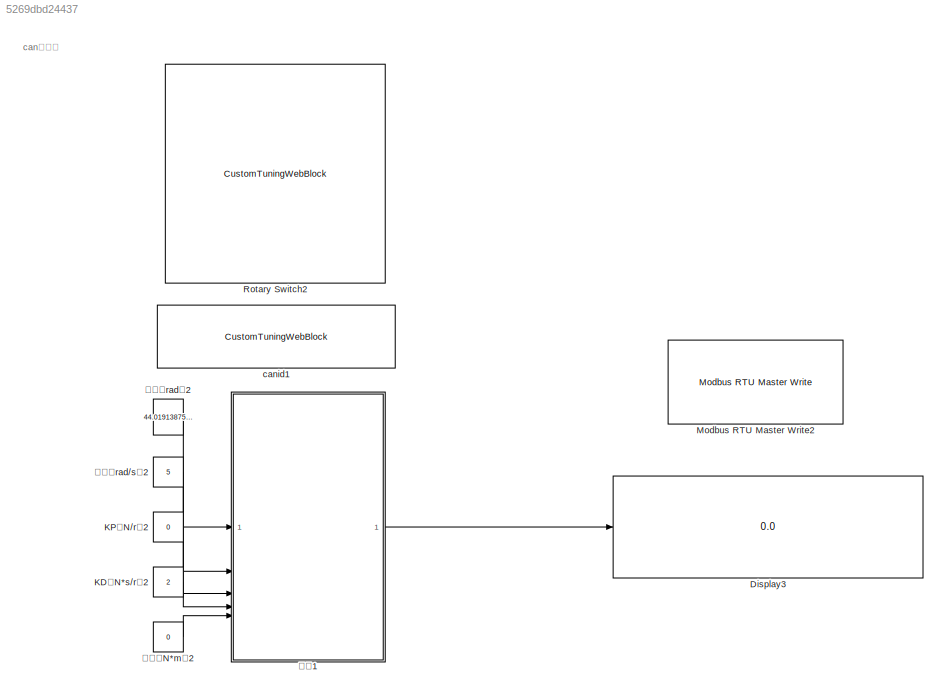
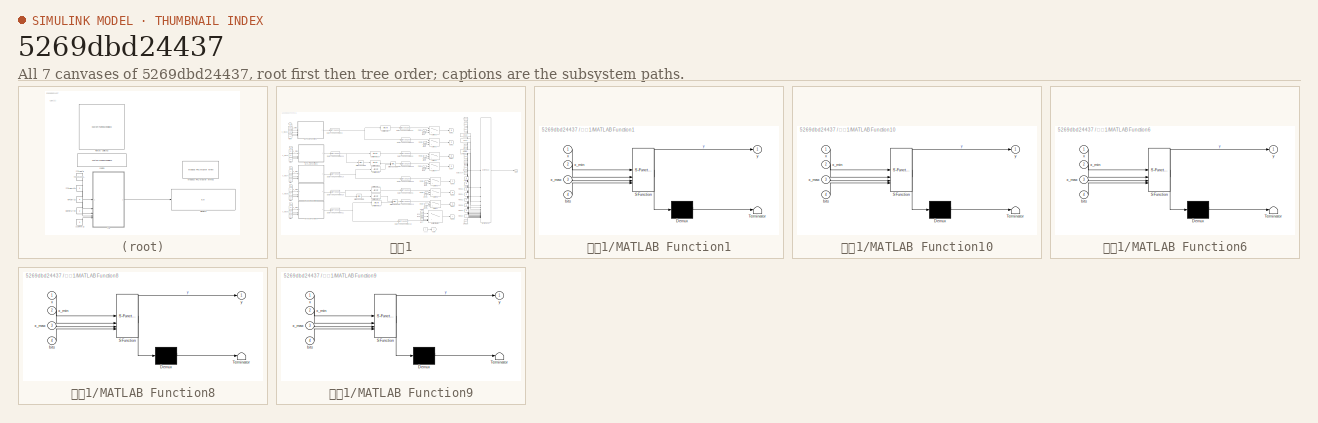
[diagram: thumbnail index - all 7 canvases of the model, root first then tree order]
MODEL slx_5269dbd24437
KIND model
CONFIG AbsTol = auto
CONFIG EnableMultiTasking = off
CONFIG FixedStep = auto
CONFIG MaxStep = auto
CONFIG MinStep = auto
CONFIG RelTol = 1e-3
CONFIG SampleTimeConstraint = Unconstrained
CONFIG SolverName = VariableStepAuto
CONFIG StartTime = 0.0
CONFIG StopTime = inf
BLOCK [Display] Display3
  Decimation = 1
  Format = hex (Stored Integer)
BLOCK [Constant] KD（N*s//r）2
  OutDataTypeStr = single
  Value = 2
BLOCK [Constant] KP（N//r）2
  OutDataTypeStr = single
  Value = 0
BLOCK [Reference] Modbus RTU Master Write2  REF=RTBoxbasiclib/Modbus RTU Master Write
  Commented = on
  SourceBlock = RTBoxbasiclib/Modbus RTU Master Write
  SourceProductName = RT Box Simulink support
  SourceType = codertarget.rtbox.blocks.Modbus_RTU_Master_Write
BLOCK [CustomTuningWebBlock] Rotary Switch2
  Configuration = {"type":"RotarySwitch","settings":{"BindingType":"param","backgroundColor":[0,0,255,"1"],"backgroundOffset":1,"fixedAspectRatio":"on","image":{"size":[150,150],"src":"data:image/svg+xml;base64,PD94bWwgdmVyc2lvbj0iMS4wIiBlbmNvZGluZz0iVVRGLTgiIHN0YW5kYWxvbmU9Im5vIj8+CjwhLS0gR2VuZXJhdG9yOiBBZG9iZSBJbGx1c3RyYXRvciAxOS4yLjEsIFNWRyBFeHBvcnQgUGx1Zy1JbiAuIFNWRyBWZXJzaW9uOiA2LjAwIEJ1aWxkIDApICAtLT4KCjxzdmc...<+18092ch>
  ShowInitialText = on
BLOCK [CustomTuningWebBlock] canid1
  Configuration = {"type":"LinearGauge","settings":{"BindingType":"param","aspectRatio":3.7777777777777777,"backgroundColor":[0,0,0,"1"],"backgroundOffset":0,"backgroundOpacity":1,"fixedAspectRatio":"on","foregroundColor":[252,252,196],"orientation":"horizontal","showBackgroundColor":false,"value":0},"components":[{"name":"LinearScaleComponent","settings":{"bounds":{"max":6,"min":1,"tickInterval":1},"internalTickHe...<+5462ch>
  LabelPosition = Hide
  ShowInitialText = on
BLOCK [Constant] 位置（rad）2
  OutDataTypeStr = single
  Value = 44.01913875598086
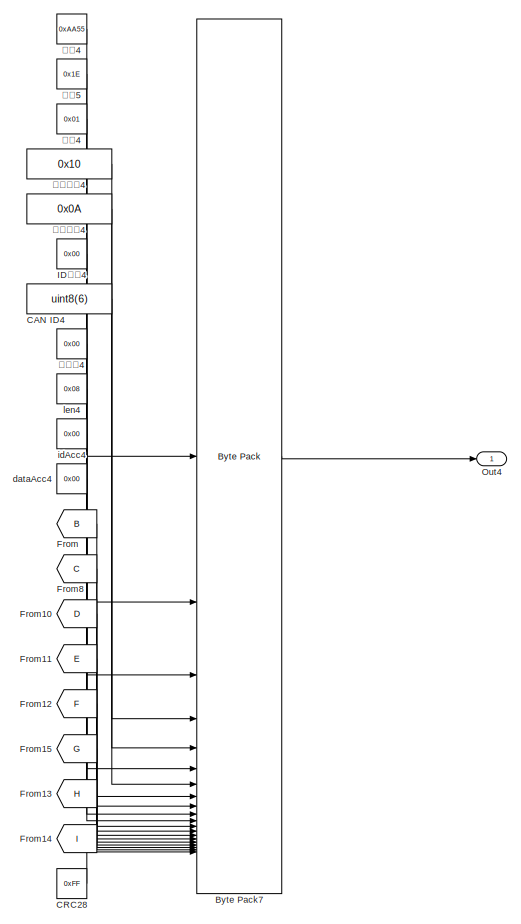
[diagram: 组包1 - part 1/3, right side, full height]
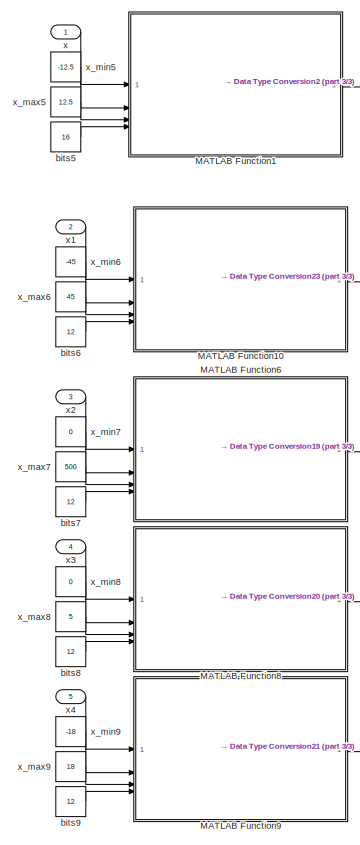
[diagram: 组包1 - part 2/3, left side, full height]
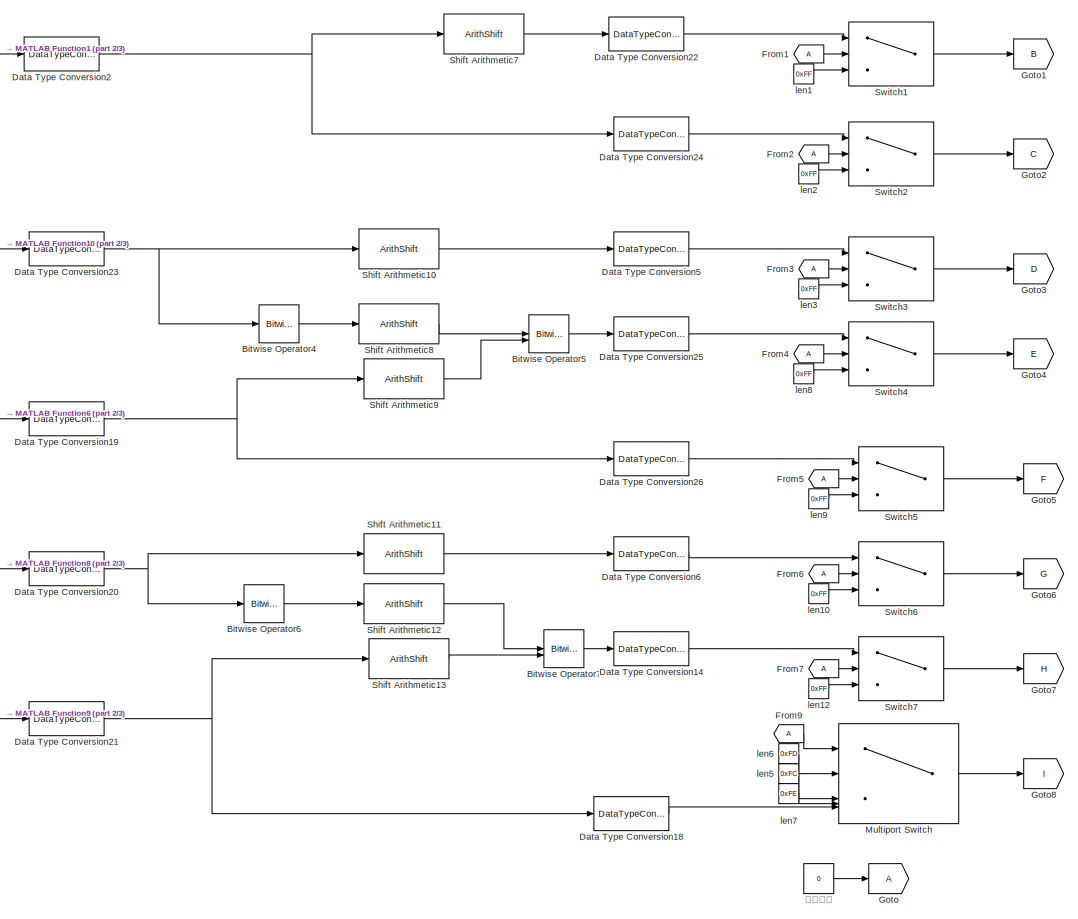
[diagram: 组包1 - part 3/3, center side, full height]
BLOCK [SubSystem] 组包1
BLOCK [Reference] 组包1/Bitwise Operator4  REF=simulink/Logic and Bit
Operations/Bitwise
Operator
  SourceBlock = simulink/Logic and Bit\nOperations/Bitwise\nOperator
  SourceType = Bitwise Operator
BLOCK [Reference] 组包1/Bitwise Operator5  REF=simulink/Logic and Bit
Operations/Bitwise
Operator
  SourceBlock = simulink/Logic and Bit\nOperations/Bitwise\nOperator
  SourceType = Bitwise Operator
BLOCK [Reference] 组包1/Bitwise Operator6  REF=simulink/Logic and Bit
Operations/Bitwise
Operator
  SourceBlock = simulink/Logic and Bit\nOperations/Bitwise\nOperator
  SourceType = Bitwise Operator
BLOCK [Reference] 组包1/Bitwise Operator7  REF=simulink/Logic and Bit
Operations/Bitwise
Operator
  SourceBlock = simulink/Logic and Bit\nOperations/Bitwise\nOperator
  SourceType = Bitwise Operator
BLOCK [Reference] 组包1/Byte Pack7  REF=etargetslib/Byte Pack
  SourceBlock = etargetslib/Byte Pack
  SourceType = Byte pack
BLOCK [Constant] 组包1/CAN ID4
  OutDataTypeStr = uint32
  Value = uint8(6)
BLOCK [Constant] 组包1/CRC28
  OutDataTypeStr = uint8
  Value = 0xFF
BLOCK [DataTypeConversion] 组包1/Data Type Conversion14
  OutDataTypeStr = uint8
  RndMeth = Floor
  SaturateOnIntegerOverflow = off
BLOCK [DataTypeConversion] 组包1/Data Type Conversion18
  OutDataTypeStr = uint8
  RndMeth = Floor
  SaturateOnIntegerOverflow = off
BLOCK [DataTypeConversion] 组包1/Data Type Conversion19
  OutDataTypeStr = uint16
  RndMeth = Floor
  SaturateOnIntegerOverflow = off
BLOCK [DataTypeConversion] 组包1/Data Type Conversion2
  OutDataTypeStr = uint16
  RndMeth = Floor
  SaturateOnIntegerOverflow = off
BLOCK [DataTypeConversion] 组包1/Data Type Conversion20
  OutDataTypeStr = uint16
  RndMeth = Floor
  SaturateOnIntegerOverflow = off
BLOCK [DataTypeConversion] 组包1/Data Type Conversion21
  OutDataTypeStr = uint16
  RndMeth = Floor
  SaturateOnIntegerOverflow = off
BLOCK [DataTypeConversion] 组包1/Data Type Conversion22
  OutDataTypeStr = uint8
  RndMeth = Floor
  SaturateOnIntegerOverflow = off
BLOCK [DataTypeConversion] 组包1/Data Type Conversion23
  OutDataTypeStr = uint16
  RndMeth = Floor
  SaturateOnIntegerOverflow = off
BLOCK [DataTypeConversion] 组包1/Data Type Conversion24
  OutDataTypeStr = uint8
  RndMeth = Floor
  SaturateOnIntegerOverflow = off
BLOCK [DataTypeConversion] 组包1/Data Type Conversion25
  OutDataTypeStr = uint8
  RndMeth = Floor
  SaturateOnIntegerOverflow = off
BLOCK [DataTypeConversion] 组包1/Data Type Conversion26
  OutDataTypeStr = uint8
  RndMeth = Floor
  SaturateOnIntegerOverflow = off
BLOCK [DataTypeConversion] 组包1/Data Type Conversion5
  NameLocation = left
  OutDataTypeStr = uint8
  RndMeth = Floor
  SaturateOnIntegerOverflow = off
BLOCK [DataTypeConversion] 组包1/Data Type Conversion6
  OutDataTypeStr = uint8
  RndMeth = Floor
  SaturateOnIntegerOverflow = off
BLOCK [From] 组包1/From
  GotoTag = B
BLOCK [From] 组包1/From1
BLOCK [From] 组包1/From10
  GotoTag = D
BLOCK [From] 组包1/From11
  GotoTag = E
BLOCK [From] 组包1/From12
  GotoTag = F
BLOCK [From] 组包1/From13
  GotoTag = H
BLOCK [From] 组包1/From14
  GotoTag = I
BLOCK [From] 组包1/From15
  GotoTag = G
BLOCK [From] 组包1/From2
BLOCK [From] 组包1/From3
BLOCK [From] 组包1/From4
BLOCK [From] 组包1/From5
BLOCK [From] 组包1/From6
BLOCK [From] 组包1/From7
BLOCK [From] 组包1/From8
  GotoTag = C
BLOCK [From] 组包1/From9
BLOCK [Goto] 组包1/Goto
BLOCK [Goto] 组包1/Goto1
  GotoTag = B
BLOCK [Goto] 组包1/Goto2
  GotoTag = C
BLOCK [Goto] 组包1/Goto3
  GotoTag = D
BLOCK [Goto] 组包1/Goto4
  GotoTag = E
BLOCK [Goto] 组包1/Goto5
  GotoTag = F
BLOCK [Goto] 组包1/Goto6
  GotoTag = G
BLOCK [Goto] 组包1/Goto7
  GotoTag = H
BLOCK [Goto] 组包1/Goto8
  GotoTag = I
BLOCK [Constant] 组包1/ID类型4
  OutDataTypeStr = uint8
  Value = 0x00
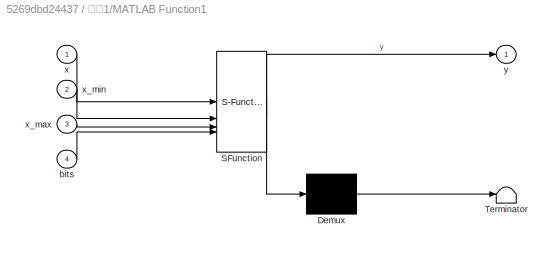
BLOCK [SubSystem] 组包1/MATLAB Function1
  ErrorFcn = Stateflow.Translate.translate
  LibrarySourceBlock = simulink/User-Defined\nFunctions/MATLAB Function
  PermitHierarchicalResolution = ExplicitOnly
  SFBlockType = MATLAB Function
  TreatAsAtomicUnit = on
BLOCK [Demux] 组包1/MATLAB Function1/ Demux 
  Outputs = 1
BLOCK [S-Function] 组包1/MATLAB Function1/ SFunction 
  EnableBusSupport = on
  FunctionName = sf_sfun
  PortCounts = [4 2]
  SFcnIsStateOwnerBlock = off
  SFunctionDeploymentMode = off
  Tag = Stateflow S-Function 3
BLOCK [Terminator] 组包1/MATLAB Function1/ Terminator 
BLOCK [Inport] 组包1/MATLAB Function1/bits
  Port = 4
BLOCK [Inport] 组包1/MATLAB Function1/x
BLOCK [Inport] 组包1/MATLAB Function1/x_max
  Port = 3
BLOCK [Inport] 组包1/MATLAB Function1/x_min
  Port = 2
BLOCK [Outport] 组包1/MATLAB Function1/y
BLOCK [SubSystem] 组包1/MATLAB Function10
  ErrorFcn = Stateflow.Translate.translate
  LibrarySourceBlock = simulink/User-Defined\nFunctions/MATLAB Function
  PermitHierarchicalResolution = ExplicitOnly
  SFBlockType = MATLAB Function
  TreatAsAtomicUnit = on
BLOCK [Demux] 组包1/MATLAB Function10/ Demux 
  Outputs = 1
BLOCK [S-Function] 组包1/MATLAB Function10/ SFunction 
  EnableBusSupport = on
  FunctionName = sf_sfun
  PortCounts = [4 2]
  SFcnIsStateOwnerBlock = off
  SFunctionDeploymentMode = off
  Tag = Stateflow S-Function 4
BLOCK [Terminator] 组包1/MATLAB Function10/ Terminator 
BLOCK [Inport] 组包1/MATLAB Function10/bits
  Port = 4
BLOCK [Inport] 组包1/MATLAB Function10/x
BLOCK [Inport] 组包1/MATLAB Function10/x_max
  Port = 3
BLOCK [Inport] 组包1/MATLAB Function10/x_min
  Port = 2
BLOCK [Outport] 组包1/MATLAB Function10/y
BLOCK [SubSystem] 组包1/MATLAB Function6
  ErrorFcn = Stateflow.Translate.translate
  LibrarySourceBlock = simulink/User-Defined\nFunctions/MATLAB Function
  PermitHierarchicalResolution = ExplicitOnly
  SFBlockType = MATLAB Function
  TreatAsAtomicUnit = on
BLOCK [Demux] 组包1/MATLAB Function6/ Demux 
  Outputs = 1
BLOCK [S-Function] 组包1/MATLAB Function6/ SFunction 
  EnableBusSupport = on
  FunctionName = sf_sfun
  PortCounts = [4 2]
  SFcnIsStateOwnerBlock = off
  SFunctionDeploymentMode = off
  Tag = Stateflow S-Function 5
BLOCK [Terminator] 组包1/MATLAB Function6/ Terminator 
BLOCK [Inport] 组包1/MATLAB Function6/bits
  Port = 4
BLOCK [Inport] 组包1/MATLAB Function6/x
BLOCK [Inport] 组包1/MATLAB Function6/x_max
  Port = 3
BLOCK [Inport] 组包1/MATLAB Function6/x_min
  Port = 2
BLOCK [Outport] 组包1/MATLAB Function6/y
BLOCK [SubSystem] 组包1/MATLAB Function8
  ErrorFcn = Stateflow.Translate.translate
  LibrarySourceBlock = simulink/User-Defined\nFunctions/MATLAB Function
  PermitHierarchicalResolution = ExplicitOnly
  SFBlockType = MATLAB Function
  TreatAsAtomicUnit = on
BLOCK [Demux] 组包1/MATLAB Function8/ Demux 
  Outputs = 1
BLOCK [S-Function] 组包1/MATLAB Function8/ SFunction 
  EnableBusSupport = on
  FunctionName = sf_sfun
  PortCounts = [4 2]
  SFcnIsStateOwnerBlock = off
  SFunctionDeploymentMode = off
  Tag = Stateflow S-Function 6
BLOCK [Terminator] 组包1/MATLAB Function8/ Terminator 
BLOCK [Inport] 组包1/MATLAB Function8/bits
  Port = 4
BLOCK [Inport] 组包1/MATLAB Function8/x
BLOCK [Inport] 组包1/MATLAB Function8/x_max
  Port = 3
BLOCK [Inport] 组包1/MATLAB Function8/x_min
  Port = 2
BLOCK [Outport] 组包1/MATLAB Function8/y
BLOCK [SubSystem] 组包1/MATLAB Function9
  ErrorFcn = Stateflow.Translate.translate
  LibrarySourceBlock = simulink/User-Defined\nFunctions/MATLAB Function
  PermitHierarchicalResolution = ExplicitOnly
  SFBlockType = MATLAB Function
  TreatAsAtomicUnit = on
BLOCK [Demux] 组包1/MATLAB Function9/ Demux 
  Outputs = 1
BLOCK [S-Function] 组包1/MATLAB Function9/ SFunction 
  EnableBusSupport = on
  FunctionName = sf_sfun
  PortCounts = [4 2]
  SFcnIsStateOwnerBlock = off
  SFunctionDeploymentMode = off
  Tag = Stateflow S-Function 8
BLOCK [Terminator] 组包1/MATLAB Function9/ Terminator 
BLOCK [Inport] 组包1/MATLAB Function9/bits
  Port = 4
BLOCK [Inport] 组包1/MATLAB Function9/x
BLOCK [Inport] 组包1/MATLAB Function9/x_max
  Port = 3
BLOCK [Inport] 组包1/MATLAB Function9/x_min
  Port = 2
BLOCK [Outport] 组包1/MATLAB Function9/y
BLOCK [MultiPortSwitch] 组包1/Multiport Switch
  DataPortOrder = Zero-based contiguous
  InputSameDT = off
  Inputs = 4
  SaturateOnIntegerOverflow = off
  zeroidx = on
BLOCK [Outport] 组包1/Out4
BLOCK [ArithShift] 组包1/Shift Arithmetic10
  BitShiftDirection = Right
  BitShiftNumber = 4
  InputPortMap = u0
BLOCK [ArithShift] 组包1/Shift Arithmetic11
  BitShiftDirection = Right
  BitShiftNumber = 4
  InputPortMap = u0
BLOCK [ArithShift] 组包1/Shift Arithmetic12
  BitShiftDirection = Left
  BitShiftNumber = 4
  InputPortMap = u0
BLOCK [ArithShift] 组包1/Shift Arithmetic13
  BitShiftDirection = Right
  BitShiftNumber = 8
  InputPortMap = u0
BLOCK [ArithShift] 组包1/Shift Arithmetic7
  BitShiftDirection = Right
  BitShiftNumber = 8
  InputPortMap = u0
BLOCK [ArithShift] 组包1/Shift Arithmetic8
  BitShiftDirection = Left
  BitShiftNumber = 4
  InputPortMap = u0
BLOCK [ArithShift] 组包1/Shift Arithmetic9
  BitShiftDirection = Right
  BitShiftNumber = 8
  InputPortMap = u0
BLOCK [Switch] 组包1/Switch1
  InputSameDT = off
  SaturateOnIntegerOverflow = off
  Threshold = 3
BLOCK [Switch] 组包1/Switch2
  InputSameDT = off
  SaturateOnIntegerOverflow = off
  Threshold = 3
BLOCK [Switch] 组包1/Switch3
  InputSameDT = off
  SaturateOnIntegerOverflow = off
  Threshold = 3
BLOCK [Switch] 组包1/Switch4
  InputSameDT = off
  SaturateOnIntegerOverflow = off
  Threshold = 3
BLOCK [Switch] 组包1/Switch5
  InputSameDT = off
  SaturateOnIntegerOverflow = off
  Threshold = 3
BLOCK [Switch] 组包1/Switch6
  InputSameDT = off
  SaturateOnIntegerOverflow = off
  Threshold = 3
BLOCK [Switch] 组包1/Switch7
  InputSameDT = off
  SaturateOnIntegerOverflow = off
  Threshold = 3
BLOCK [Constant] 组包1/bits5
  OutDataTypeStr = uint16
  Value = 16
BLOCK [Constant] 组包1/bits6
  OutDataTypeStr = uint16
  Value = 12
BLOCK [Constant] 组包1/bits7
  OutDataTypeStr = uint16
  Value = 12
BLOCK [Constant] 组包1/bits8
  OutDataTypeStr = uint16
  Value = 12
BLOCK [Constant] 组包1/bits9
  OutDataTypeStr = uint16
  Value = 12
BLOCK [Constant] 组包1/dataAcc4
  OutDataTypeStr = uint8
  Value = 0x00
BLOCK [Constant] 组包1/idAcc4
  OutDataTypeStr = uint8
  Value = 0x00
BLOCK [Constant] 组包1/len1
  OutDataTypeStr = uint8
  Value = 0xFF
BLOCK [Constant] 组包1/len10
  OutDataTypeStr = uint8
  Value = 0xFF
BLOCK [Constant] 组包1/len12
  OutDataTypeStr = uint8
  Value = 0xFF
BLOCK [Constant] 组包1/len2
  OutDataTypeStr = uint8
  Value = 0xFF
BLOCK [Constant] 组包1/len3
  OutDataTypeStr = uint8
  Value = 0xFF
BLOCK [Constant] 组包1/len4
  OutDataTypeStr = uint8
  Value = 0x08
BLOCK [Constant] 组包1/len5
  OutDataTypeStr = uint8
  Value = 0xFC
BLOCK [Constant] 组包1/len6
  OutDataTypeStr = uint8
  Value = 0xFD
BLOCK [Constant] 组包1/len7
  OutDataTypeStr = uint8
  Value = 0xFE
BLOCK [Constant] 组包1/len8
  OutDataTypeStr = uint8
  Value = 0xFF
BLOCK [Constant] 组包1/len9
  OutDataTypeStr = uint8
  Value = 0xFF
BLOCK [Inport] 组包1/x
BLOCK [Inport] 组包1/x1
  Port = 2
BLOCK [Inport] 组包1/x2
  Port = 3
BLOCK [Inport] 组包1/x3
  Port = 4
BLOCK [Inport] 组包1/x4
  Port = 5
BLOCK [Constant] 组包1/x_max5
  OutDataTypeStr = single
  Value = 12.5
BLOCK [Constant] 组包1/x_max6
  OutDataTypeStr = single
  Value = 45
BLOCK [Constant] 组包1/x_max7
  OutDataTypeStr = single
  Value = 500
BLOCK [Constant] 组包1/x_max8
  OutDataTypeStr = single
  Value = 5
BLOCK [Constant] 组包1/x_max9
  OutDataTypeStr = single
  Value = 18
BLOCK [Constant] 组包1/x_min5
  OutDataTypeStr = single
  Value = -12.5
BLOCK [Constant] 组包1/x_min6
  OutDataTypeStr = single
  Value = -45
BLOCK [Constant] 组包1/x_min7
  OutDataTypeStr = single
  Value = 0
BLOCK [Constant] 组包1/x_min8
  OutDataTypeStr = single
  Value = 0
BLOCK [Constant] 组包1/x_min9
  OutDataTypeStr = single
  Value = -18
BLOCK [Constant] 组包1/发送次数4
  OutDataTypeStr = uint32
  Value = 0x10
BLOCK [Constant] 组包1/命令4
  OutDataTypeStr = uint8
  Value = 0x01
BLOCK [Constant] 组包1/帧头4
  OutDataTypeStr = uint16
  Value = 0xAA55
BLOCK [Constant] 组包1/帧类型4
  OutDataTypeStr = uint8
  Value = 0x00
BLOCK [Constant] 组包1/帧长5
  OutDataTypeStr = uint8
  Value = 0x1E
BLOCK [Constant] 组包1/控制模式
  OutDataTypeStr = int8
  Value = 0
BLOCK [Constant] 组包1/时间间隔4
  OutDataTypeStr = uint32
  Value = 0x0A
BLOCK [Constant] 转矩（N*m）2
  OutDataTypeStr = single
  Value = 0
BLOCK [Constant] 速度（rad//s）2
  OutDataTypeStr = single
  Value = 5
ANNOTATION (root): can发送端
LINE KD（N*s//r）2:1 -> 组包1:4
LINE KP（N//r）2:1 -> 组包1:3
LINE 位置（rad）2:1 -> 组包1:1
LINE 组包1/Bitwise Operator4:1 -> 组包1/Shift Arithmetic8:1
LINE 组包1/Bitwise Operator5:1 -> 组包1/Data Type Conversion25:1
LINE 组包1/Bitwise Operator6:1 -> 组包1/Shift Arithmetic12:1
LINE 组包1/Bitwise Operator7:1 -> 组包1/Data Type Conversion14:1
LINE 组包1/Byte Pack7:1 -> 组包1/Out4:1
LINE 组包1/CAN ID4:1 -> 组包1/Byte Pack7:7
LINE 组包1/CRC28:1 -> 组包1/Byte Pack7:20
LINE 组包1/Data Type Conversion14:1 -> 组包1/Switch7:1
LINE 组包1/Data Type Conversion18:1 -> 组包1/Multiport Switch:5
NET 组包1/Data Type Conversion19:1 -> 组包1/Data Type Conversion26:1, 组包1/Shift Arithmetic9:1
NET 组包1/Data Type Conversion20:1 -> 组包1/Bitwise Operator6:1, 组包1/Shift Arithmetic11:1
NET 组包1/Data Type Conversion21:1 -> 组包1/Data Type Conversion18:1, 组包1/Shift Arithmetic13:1
LINE 组包1/Data Type Conversion22:1 -> 组包1/Switch1:1
NET 组包1/Data Type Conversion23:1 -> 组包1/Bitwise Operator4:1, 组包1/Shift Arithmetic10:1
LINE 组包1/Data Type Conversion24:1 -> 组包1/Switch2:1
LINE 组包1/Data Type Conversion25:1 -> 组包1/Switch4:1
LINE 组包1/Data Type Conversion26:1 -> 组包1/Switch5:1
NET 组包1/Data Type Conversion2:1 -> 组包1/Data Type Conversion24:1, 组包1/Shift Arithmetic7:1
LINE 组包1/Data Type Conversion5:1 -> 组包1/Switch3:1
LINE 组包1/Data Type Conversion6:1 -> 组包1/Switch6:1
LINE 组包1/From10:1 -> 组包1/Byte Pack7:14
LINE 组包1/From11:1 -> 组包1/Byte Pack7:15
LINE 组包1/From12:1 -> 组包1/Byte Pack7:16
LINE 组包1/From13:1 -> 组包1/Byte Pack7:18
LINE 组包1/From14:1 -> 组包1/Byte Pack7:19
LINE 组包1/From15:1 -> 组包1/Byte Pack7:17
LINE 组包1/From1:1 -> 组包1/Switch1:2
LINE 组包1/From2:1 -> 组包1/Switch2:2
LINE 组包1/From3:1 -> 组包1/Switch3:2
LINE 组包1/From4:1 -> 组包1/Switch4:2
LINE 组包1/From5:1 -> 组包1/Switch5:2
LINE 组包1/From6:1 -> 组包1/Switch6:2
LINE 组包1/From7:1 -> 组包1/Switch7:2
LINE 组包1/From8:1 -> 组包1/Byte Pack7:13
LINE 组包1/From9:1 -> 组包1/Multiport Switch:1
LINE 组包1/From:1 -> 组包1/Byte Pack7:12
LINE 组包1/ID类型4:1 -> 组包1/Byte Pack7:6
LINE 组包1/MATLAB Function10:1 -> 组包1/Data Type Conversion23:1
LINE 组包1/MATLAB Function1:1 -> 组包1/Data Type Conversion2:1
LINE 组包1/MATLAB Function6:1 -> 组包1/Data Type Conversion19:1
LINE 组包1/MATLAB Function8:1 -> 组包1/Data Type Conversion20:1
LINE 组包1/MATLAB Function9:1 -> 组包1/Data Type Conversion21:1
LINE 组包1/Multiport Switch:1 -> 组包1/Goto8:1
LINE 组包1/Shift Arithmetic10:1 -> 组包1/Data Type Conversion5:1
LINE 组包1/Shift Arithmetic11:1 -> 组包1/Data Type Conversion6:1
LINE 组包1/Shift Arithmetic12:1 -> 组包1/Bitwise Operator7:1
LINE 组包1/Shift Arithmetic13:1 -> 组包1/Bitwise Operator7:2
LINE 组包1/Shift Arithmetic7:1 -> 组包1/Data Type Conversion22:1
LINE 组包1/Shift Arithmetic8:1 -> 组包1/Bitwise Operator5:1
LINE 组包1/Shift Arithmetic9:1 -> 组包1/Bitwise Operator5:2
LINE 组包1/Switch1:1 -> 组包1/Goto1:1
LINE 组包1/Switch2:1 -> 组包1/Goto2:1
LINE 组包1/Switch3:1 -> 组包1/Goto3:1
LINE 组包1/Switch4:1 -> 组包1/Goto4:1
LINE 组包1/Switch5:1 -> 组包1/Goto5:1
LINE 组包1/Switch6:1 -> 组包1/Goto6:1
LINE 组包1/Switch7:1 -> 组包1/Goto7:1
LINE 组包1/bits5:1 -> 组包1/MATLAB Function1:4
LINE 组包1/bits6:1 -> 组包1/MATLAB Function10:4
LINE 组包1/bits7:1 -> 组包1/MATLAB Function6:4
LINE 组包1/bits8:1 -> 组包1/MATLAB Function8:4
LINE 组包1/bits9:1 -> 组包1/MATLAB Function9:4
LINE 组包1/dataAcc4:1 -> 组包1/Byte Pack7:11
LINE 组包1/idAcc4:1 -> 组包1/Byte Pack7:10
LINE 组包1/len10:1 -> 组包1/Switch6:3
LINE 组包1/len12:1 -> 组包1/Switch7:3
LINE 组包1/len1:1 -> 组包1/Switch1:3
LINE 组包1/len2:1 -> 组包1/Switch2:3
LINE 组包1/len3:1 -> 组包1/Switch3:3
LINE 组包1/len4:1 -> 组包1/Byte Pack7:9
LINE 组包1/len5:1 -> 组包1/Multiport Switch:3
LINE 组包1/len6:1 -> 组包1/Multiport Switch:2
LINE 组包1/len7:1 -> 组包1/Multiport Switch:4
LINE 组包1/len8:1 -> 组包1/Switch4:3
LINE 组包1/len9:1 -> 组包1/Switch5:3
LINE 组包1/x1:1 -> 组包1/MATLAB Function10:1
LINE 组包1/x2:1 -> 组包1/MATLAB Function6:1
LINE 组包1/x3:1 -> 组包1/MATLAB Function8:1
LINE 组包1/x4:1 -> 组包1/MATLAB Function9:1
LINE 组包1/x:1 -> 组包1/MATLAB Function1:1
LINE 组包1/x_max5:1 -> 组包1/MATLAB Function1:3
LINE 组包1/x_max6:1 -> 组包1/MATLAB Function10:3
LINE 组包1/x_max7:1 -> 组包1/MATLAB Function6:3
LINE 组包1/x_max8:1 -> 组包1/MATLAB Function8:3
LINE 组包1/x_max9:1 -> 组包1/MATLAB Function9:3
LINE 组包1/x_min5:1 -> 组包1/MATLAB Function1:2
LINE 组包1/x_min6:1 -> 组包1/MATLAB Function10:2
LINE 组包1/x_min7:1 -> 组包1/MATLAB Function6:2
LINE 组包1/x_min8:1 -> 组包1/MATLAB Function8:2
LINE 组包1/x_min9:1 -> 组包1/MATLAB Function9:2
LINE 组包1/发送次数4:1 -> 组包1/Byte Pack7:4
LINE 组包1/命令4:1 -> 组包1/Byte Pack7:3
LINE 组包1/帧头4:1 -> 组包1/Byte Pack7:1
LINE 组包1/帧类型4:1 -> 组包1/Byte Pack7:8
LINE 组包1/帧长5:1 -> 组包1/Byte Pack7:2
LINE 组包1/控制模式:1 -> 组包1/Goto:1
LINE 组包1/时间间隔4:1 -> 组包1/Byte Pack7:5
LINE 组包1:1 -> Display3:1
LINE 转矩（N*m）2:1 -> 组包1:5
LINE 速度（rad//s）2:1 -> 组包1:2
note: NET lines group one-source signal fan-out (src -> all destinations, sorted); 1:1 wires keep LINE
CHART 组包1/MATLAB Function1 states=1 transitions=1
  STATE_LABEL 'eML_blk_kernel()'
  STATE_LABEL "SCRIPT:\nfunction y = float_to_uint(x, x_min, x_max, bits)\n% Converts a float to an unsigned int, given range and number of bits\n\n% 简单的参数检查（无字符串信息）\nif ~(isa(x, 'single') || isa(x, 'double'))\n    y = int32(0);  % 返回 0 表示错误\n    return;\nend\n\nif ~(isa(x_min, 'single') || isa(x_min, 'double')) || ...\n   ~(isa(x_max, 'single') || isa(x_max, 'double')) || ...\n    ~isscalar(bits) || bits <= 0\n    y = int32...<+172ch>"  <repeated x5 — deduplicated; at blocks: MATLAB Function1, MATLAB Function10, MATLAB Function6, MATLAB Function8, MATLAB Function9>
CHART 组包1/MATLAB Function10 states=1 transitions=1
  STATE_LABEL 'eML_blk_kernel()'
CHART 组包1/MATLAB Function6 states=1 transitions=1
  STATE_LABEL 'eML_blk_kernel()'
CHART 组包1/MATLAB Function8 states=1 transitions=1
  STATE_LABEL 'eML_blk_kernel()'
CHART 组包1/MATLAB Function9 states=1 transitions=1
  STATE_LABEL 'eML_blk_kernel()'
CHART  states=0 transitions=0
CHART  states=0 transitions=0
CHART  states=0 transitions=0
CHART  states=0 transitions=0
CHART  states=0 transitions=0
